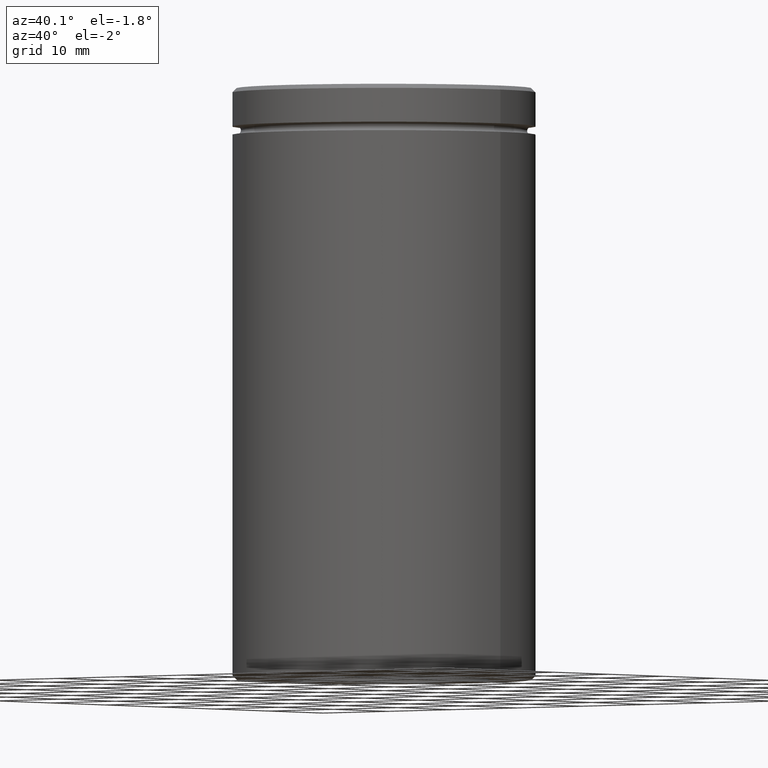
[diagram: clean part render]
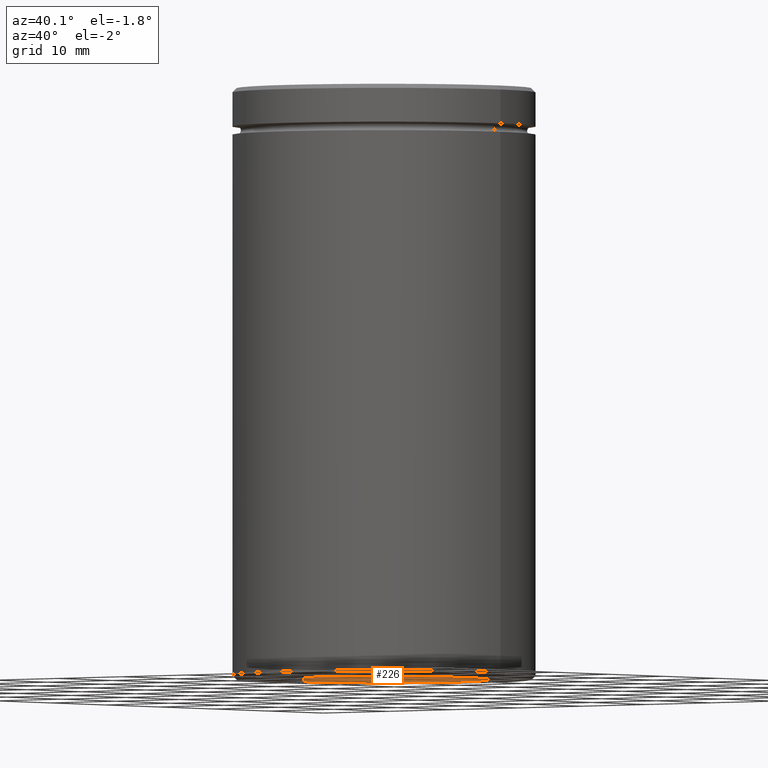
[diagram: same view with one face highlighted and labeled with its STEP entity id]
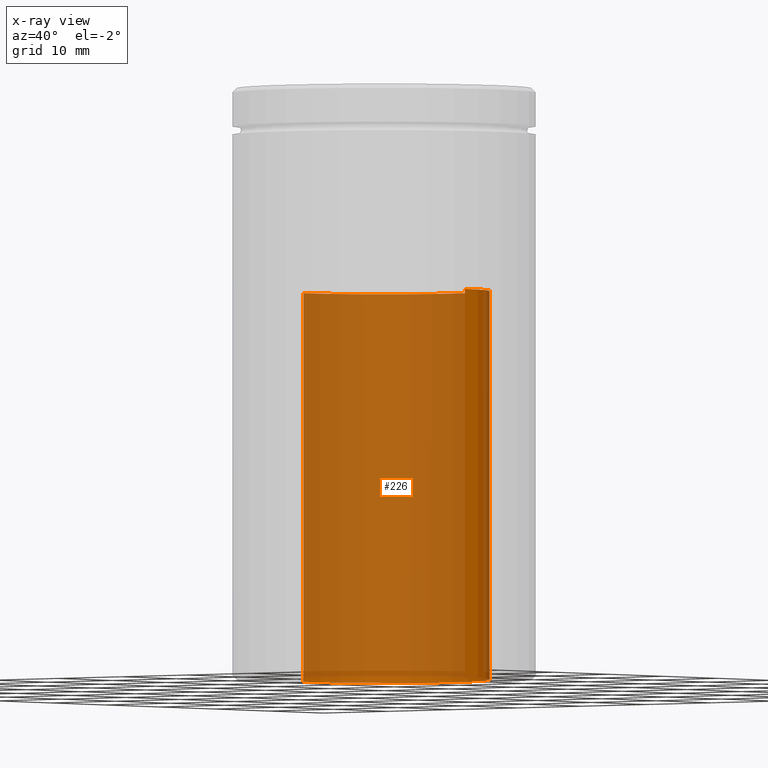
[diagram: x-ray of the same camera — body ghosted, the highlighted face saturated]
A machine part, auxiliary view. The second image highlights one B-rep face of the part: STEP entity #226.
The next image is the same camera in x-ray: the body ghosted, the highlighted face saturated — about 89% of this face is hidden behind the body in this view.
In plain terms, the highlighted cylindrical surface (partial cylindrical patch) has radius 12.5 mm, axis along (-0, -0, -1).
Its self-contained STEP definition (entity closure, byte-faithful):
#12 = CIRCLE ( 'NONE', #350, 12.50000000000000000 ) ;
#16 = DIRECTION ( 'NONE',  ( -1.000000000000000000, 0.000000000000000000, 0.000000000000000000 ) ) ;
#21 = DIRECTION ( 'NONE',  ( 0.000000000000000000, 0.000000000000000000, -1.000000000000000000 ) ) ;
#71 = CARTESIAN_POINT ( 'NONE',  ( 12.50000000000000000, 1.530808498934191521E-15, -24.00000000000000711 ) ) ;
#98 = CYLINDRICAL_SURFACE ( 'NONE', #415, 12.50000000000000000 ) ;
#101 = ORIENTED_EDGE ( 'NONE', *, *, #248, .F. ) ;
#109 = VERTEX_POINT ( 'NONE', #286 ) ;
#145 = CIRCLE ( 'NONE', #365, 12.50000000000000000 ) ;
#165 = VERTEX_POINT ( 'NONE', #518 ) ;
#168 = EDGE_LOOP ( 'NONE', ( #101, #436, #338, #246 ) ) ;
#170 = DIRECTION ( 'NONE',  ( -0.000000000000000000, -0.000000000000000000, -1.000000000000000000 ) ) ;
#172 = DIRECTION ( 'NONE',  ( -0.000000000000000000, -0.000000000000000000, -1.000000000000000000 ) ) ;
#174 = VECTOR ( 'NONE', #170, 1000.000000000000000 ) ;
#178 = LINE ( 'NONE', #71, #373 ) ;
#200 = DIRECTION ( 'NONE',  ( -1.000000000000000000, 0.000000000000000000, 0.000000000000000000 ) ) ;
#210 = CARTESIAN_POINT ( 'NONE',  ( -12.50000000000000000, 0.000000000000000000, -24.00000000000000711 ) ) ;
#214 = LINE ( 'NONE', #269, #174 ) ;
#226 = ADVANCED_FACE ( 'NONE', ( #328 ), #98, .F. ) ;
#228 = EDGE_CURVE ( 'NONE', #392, #297, #214, .T. ) ;
#237 = CARTESIAN_POINT ( 'NONE',  ( 0.000000000000000000, 0.000000000000000000, -24.00000000000000711 ) ) ;
#246 = ORIENTED_EDGE ( 'NONE', *, *, #419, .T. ) ;
#248 = EDGE_CURVE ( 'NONE', #165, #109, #178, .T. ) ;
#269 = CARTESIAN_POINT ( 'NONE',  ( -12.50000000000000000, 0.000000000000000000, -24.00000000000000711 ) ) ;
#286 = CARTESIAN_POINT ( 'NONE',  ( 12.50000000000000000, 1.530808498934191521E-15, -70.00000000000000000 ) ) ;
#290 = DIRECTION ( 'NONE',  ( 0.000000000000000000, 0.000000000000000000, -1.000000000000000000 ) ) ;
#297 = VERTEX_POINT ( 'NONE', #567 ) ;
#328 = FACE_OUTER_BOUND ( 'NONE', #168, .T. ) ;
#338 = ORIENTED_EDGE ( 'NONE', *, *, #228, .T. ) ;
#350 = AXIS2_PLACEMENT_3D ( 'NONE', #366, #290, #16 ) ;
#365 = AXIS2_PLACEMENT_3D ( 'NONE', #425, #21, #200 ) ;
#366 = CARTESIAN_POINT ( 'NONE',  ( 0.000000000000000000, 0.000000000000000000, -24.00000000000000711 ) ) ;
#373 = VECTOR ( 'NONE', #172, 1000.000000000000000 ) ;
#392 = VERTEX_POINT ( 'NONE', #210 ) ;
#415 = AXIS2_PLACEMENT_3D ( 'NONE', #237, #546, #462 ) ;
#419 = EDGE_CURVE ( 'NONE', #297, #109, #145, .T. ) ;
#425 = CARTESIAN_POINT ( 'NONE',  ( 0.000000000000000000, 0.000000000000000000, -70.00000000000000000 ) ) ;
#436 = ORIENTED_EDGE ( 'NONE', *, *, #470, .F. ) ;
#462 = DIRECTION ( 'NONE',  ( -1.000000000000000000, 0.000000000000000000, 0.000000000000000000 ) ) ;
#470 = EDGE_CURVE ( 'NONE', #392, #165, #12, .T. ) ;
#518 = CARTESIAN_POINT ( 'NONE',  ( 12.50000000000000000, 1.530808498934191521E-15, -24.00000000000000711 ) ) ;
#546 = DIRECTION ( 'NONE',  ( -0.000000000000000000, -0.000000000000000000, -1.000000000000000000 ) ) ;
#567 = CARTESIAN_POINT ( 'NONE',  ( -12.50000000000000000, 0.000000000000000000, -70.00000000000000000 ) ) ;